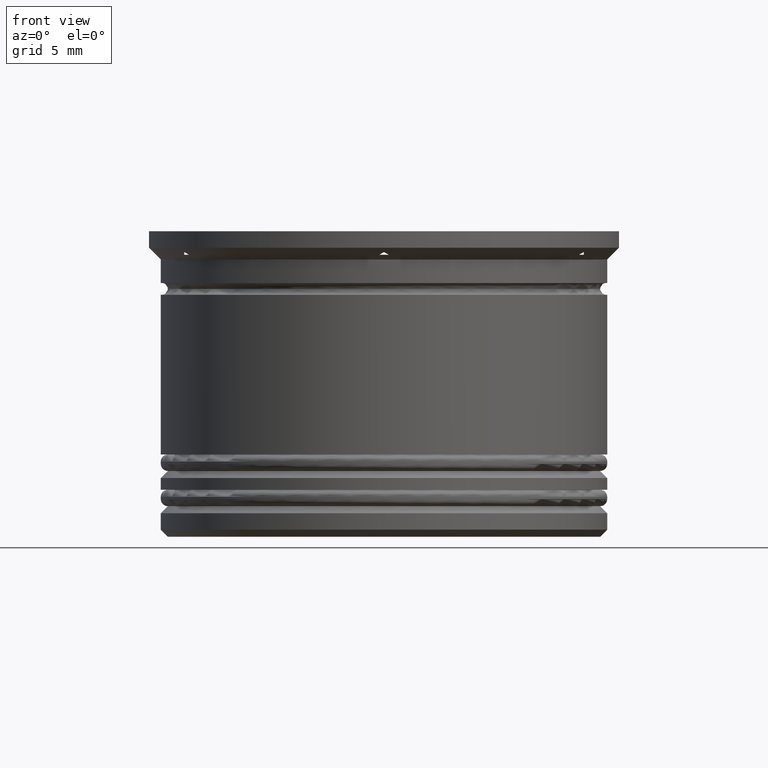
[diagram: clean part render]
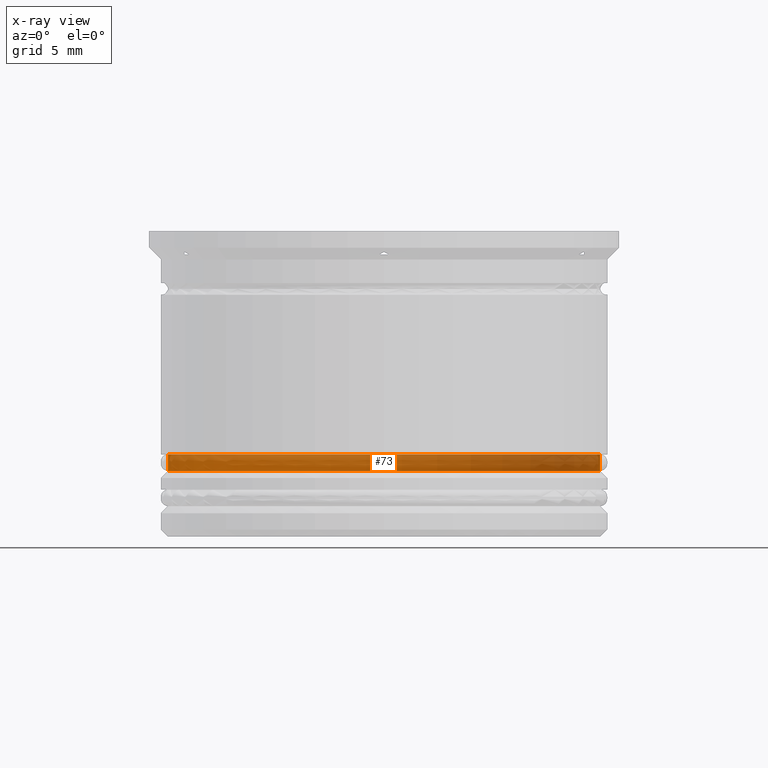
[diagram: x-ray — body ghosted, one internal face saturated and labeled with its STEP entity id]
A machine part, front view, then the same camera in x-ray: the body is ghosted and one INTERNAL B-rep face — a face not visible from any outside direction — is saturated and labeled: STEP entity #73.
In plain terms, the highlighted cylindrical surface (partial cylindrical patch) has radius 9.2 mm, axis along (-0, -0, 1).
Its self-contained STEP definition (entity closure, byte-faithful):
#73 = ADVANCED_FACE ( 'NONE', ( #1380 ), #738, .T. ) ;
#99 = VERTEX_POINT ( 'NONE', #262 ) ;
#130 = DIRECTION ( 'NONE',  ( -0.000000000000000000, -0.000000000000000000, 1.000000000000000000 ) ) ;
#149 = EDGE_CURVE ( 'NONE', #547, #99, #946, .T. ) ;
#174 = DIRECTION ( 'NONE',  ( -0.000000000000000000, -0.000000000000000000, 1.000000000000000000 ) ) ;
#246 = EDGE_CURVE ( 'NONE', #547, #1769, #1988, .T. ) ;
#262 = CARTESIAN_POINT ( 'NONE',  ( 9.199999999999999289, 0.000000000000000000, -9.500000000000000000 ) ) ;
#547 = VERTEX_POINT ( 'NONE', #2013 ) ;
#563 = DIRECTION ( 'NONE',  ( -0.000000000000000000, -0.000000000000000000, 1.000000000000000000 ) ) ;
#581 = AXIS2_PLACEMENT_3D ( 'NONE', #2070, #563, #1218 ) ;
#662 = VECTOR ( 'NONE', #1434, 1000.000000000000000 ) ;
#671 = ORIENTED_EDGE ( 'NONE', *, *, #149, .F. ) ;
#738 = CYLINDRICAL_SURFACE ( 'NONE', #581, 9.199999999999999289 ) ;
#802 = DIRECTION ( 'NONE',  ( -1.000000000000000000, 0.000000000000000000, 0.000000000000000000 ) ) ;
#825 = DIRECTION ( 'NONE',  ( -0.000000000000000000, -0.000000000000000000, 1.000000000000000000 ) ) ;
#846 = EDGE_CURVE ( 'NONE', #99, #935, #2122, .T. ) ;
#935 = VERTEX_POINT ( 'NONE', #1369 ) ;
#946 = LINE ( 'NONE', #1624, #1160 ) ;
#978 = CARTESIAN_POINT ( 'NONE',  ( 0.000000000000000000, 0.000000000000000000, -10.20000000000000639 ) ) ;
#1010 = CARTESIAN_POINT ( 'NONE',  ( 0.000000000000000000, 0.000000000000000000, -9.500000000000000000 ) ) ;
#1033 = CARTESIAN_POINT ( 'NONE',  ( -9.199999999999999289, 1.126675055215564822E-15, 0.000000000000000000 ) ) ;
#1106 = ORIENTED_EDGE ( 'NONE', *, *, #846, .F. ) ;
#1150 = DIRECTION ( 'NONE',  ( 1.000000000000000000, 0.000000000000000000, 0.000000000000000000 ) ) ;
#1160 = VECTOR ( 'NONE', #130, 1000.000000000000000 ) ;
#1218 = DIRECTION ( 'NONE',  ( 1.000000000000000000, 0.000000000000000000, 0.000000000000000000 ) ) ;
#1301 = CARTESIAN_POINT ( 'NONE',  ( -9.199999999999999289, 1.126675055215564822E-15, -10.20000000000000639 ) ) ;
#1364 = ORIENTED_EDGE ( 'NONE', *, *, #2156, .T. ) ;
#1369 = CARTESIAN_POINT ( 'NONE',  ( -9.199999999999999289, 1.126675055215564822E-15, -9.500000000000000000 ) ) ;
#1380 = FACE_OUTER_BOUND ( 'NONE', #1855, .T. ) ;
#1434 = DIRECTION ( 'NONE',  ( -0.000000000000000000, -0.000000000000000000, 1.000000000000000000 ) ) ;
#1624 = CARTESIAN_POINT ( 'NONE',  ( 9.199999999999999289, 0.000000000000000000, 0.000000000000000000 ) ) ;
#1769 = VERTEX_POINT ( 'NONE', #1301 ) ;
#1846 = AXIS2_PLACEMENT_3D ( 'NONE', #978, #825, #802 ) ;
#1855 = EDGE_LOOP ( 'NONE', ( #1857, #1364, #1106, #671 ) ) ;
#1857 = ORIENTED_EDGE ( 'NONE', *, *, #246, .T. ) ;
#1988 = CIRCLE ( 'NONE', #1846, 9.199999999999999289 ) ;
#2005 = LINE ( 'NONE', #1033, #662 ) ;
#2013 = CARTESIAN_POINT ( 'NONE',  ( 9.199999999999999289, 0.000000000000000000, -10.20000000000000639 ) ) ;
#2070 = CARTESIAN_POINT ( 'NONE',  ( 0.000000000000000000, 0.000000000000000000, 0.000000000000000000 ) ) ;
#2092 = AXIS2_PLACEMENT_3D ( 'NONE', #1010, #174, #1150 ) ;
#2122 = CIRCLE ( 'NONE', #2092, 9.199999999999999289 ) ;
#2156 = EDGE_CURVE ( 'NONE', #1769, #935, #2005, .T. ) ;